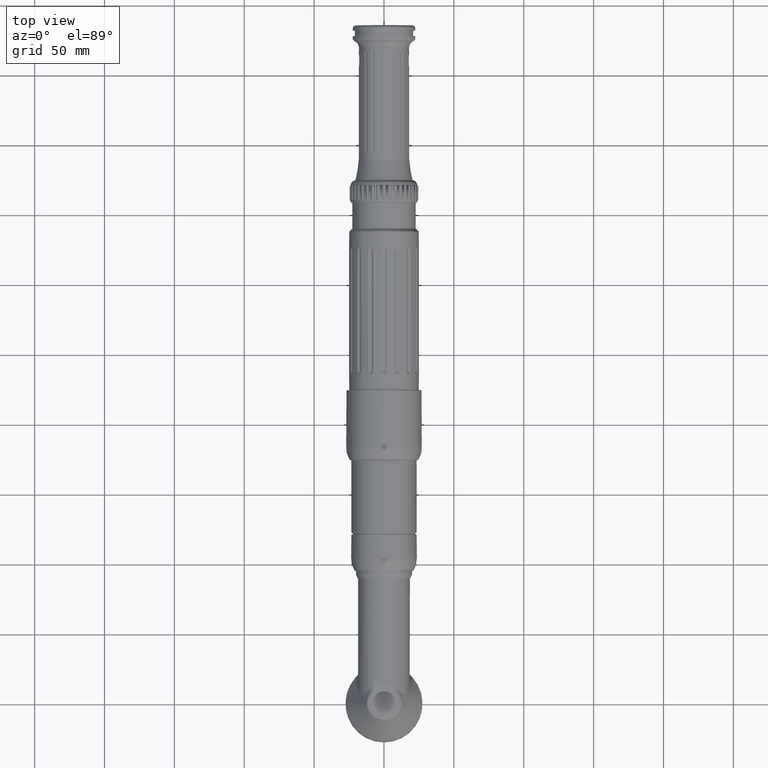
[diagram: clean part render]
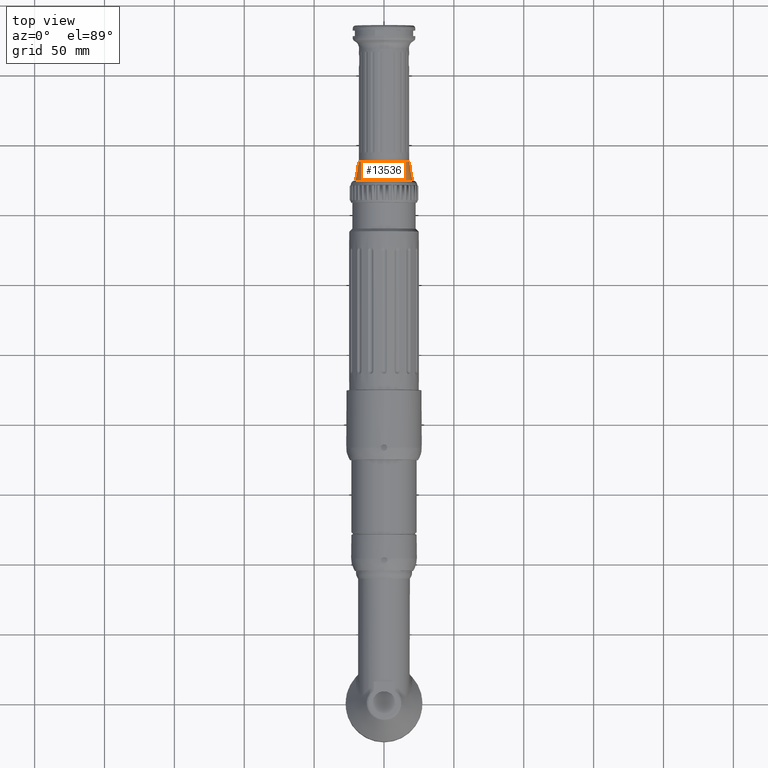
[diagram: same view with one face highlighted and labeled with its STEP entity id]
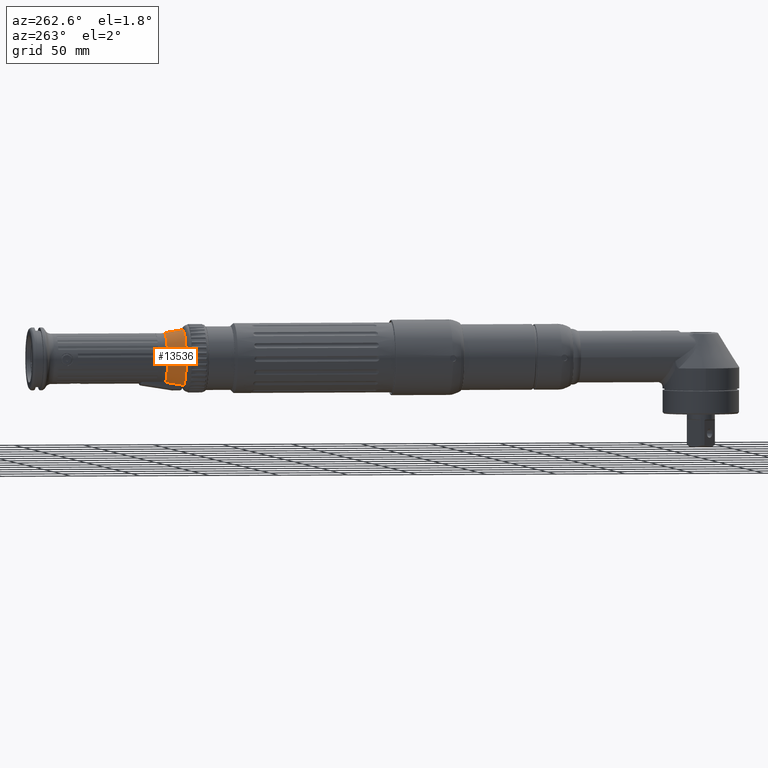
[diagram: same view with one face highlighted and labeled with its STEP entity id]
A machine part, top view. The second image highlights one B-rep face of the part: STEP entity #13536.
A second angle (auxiliary view) of the same face is appended — the face is thin or edge-on in the first view.
In plain terms, the highlighted conical surface has half-angle 9.462 deg.
Its self-contained STEP definition (entity closure, byte-faithful):
#104=(
BOUNDED_CURVE()
B_SPLINE_CURVE(2,(#22838,#22839,#22840),.UNSPECIFIED.,.F.,.F.)
B_SPLINE_CURVE_WITH_KNOTS((3,3),(0.177331248463677,1.22238590458297),
 .UNSPECIFIED.)
CURVE()
GEOMETRIC_REPRESENTATION_ITEM()
RATIONAL_B_SPLINE_CURVE((1.00050185933742,1.0017858943597,1.00077448627961))
REPRESENTATION_ITEM('')
);
#105=(
BOUNDED_CURVE()
B_SPLINE_CURVE(2,(#22843,#22844,#22845),.UNSPECIFIED.,.F.,.F.)
B_SPLINE_CURVE_WITH_KNOTS((3,3),(0.301451099232804,1.34650575535226),
 .UNSPECIFIED.)
CURVE()
GEOMETRIC_REPRESENTATION_ITEM()
RATIONAL_B_SPLINE_CURVE((1.00077448627967,1.00178589435986,1.00050185933746))
REPRESENTATION_ITEM('')
);
#3114=FACE_OUTER_BOUND('',#4074,.T.);
#4074=EDGE_LOOP('',(#10515,#10516,#10517,#10518,#10519,#10520));
#4983=CIRCLE('',#14757,20.5);
#5022=CIRCLE('',#14798,5268.20014690258);
#5033=CIRCLE('',#14902,18.2721215233571);
#5034=CIRCLE('',#14903,5268.20014689311);
#6063=VERTEX_POINT('',#22221);
#6064=VERTEX_POINT('',#22223);
#6152=VERTEX_POINT('',#22525);
#6226=VERTEX_POINT('',#22835);
#6227=VERTEX_POINT('',#22836);
#6228=VERTEX_POINT('',#22841);
#7543=EDGE_CURVE('',#6064,#6063,#4983,.T.);
#7632=EDGE_CURVE('',#6152,#6064,#5022,.T.);
#7775=EDGE_CURVE('',#6226,#6227,#5033,.T.);
#7776=EDGE_CURVE('',#6226,#6152,#104,.T.);
#7777=EDGE_CURVE('',#6063,#6228,#5034,.T.);
#7778=EDGE_CURVE('',#6228,#6227,#105,.T.);
#10515=ORIENTED_EDGE('',*,*,#7775,.F.);
#10516=ORIENTED_EDGE('',*,*,#7776,.T.);
#10517=ORIENTED_EDGE('',*,*,#7632,.T.);
#10518=ORIENTED_EDGE('',*,*,#7543,.T.);
#10519=ORIENTED_EDGE('',*,*,#7777,.T.);
#10520=ORIENTED_EDGE('',*,*,#7778,.T.);
#12245=CONICAL_SURFACE('',#14901,19.25,9.46232220802565);
#13536=ADVANCED_FACE('',(#3114),#12245,.T.);
#14757=AXIS2_PLACEMENT_3D('',#22224,#17562,#17563);
#14798=AXIS2_PLACEMENT_3D('',#22526,#17686,#17687);
#14901=AXIS2_PLACEMENT_3D('',#22834,#18024,#18025);
#14902=AXIS2_PLACEMENT_3D('',#22837,#18026,#18027);
#14903=AXIS2_PLACEMENT_3D('',#22842,#18028,#18029);
#17562=DIRECTION('center_axis',(2.13354998657263E-15,1.,4.58939882007526E-15));
#17563=DIRECTION('ref_axis',(-1.,2.13354998657267E-15,-1.02140518265515E-14));
#17686=DIRECTION('center_axis',(-1.,-7.99860893122631E-13,4.50287575685217E-12));
#17687=DIRECTION('ref_axis',(-4.57336470447201E-12,0.174596569279944,-0.984640055043301));
#18024=DIRECTION('center_axis',(-2.13354998657263E-15,-1.,-4.58939882007526E-15));
#18025=DIRECTION('ref_axis',(-1.02140518265515E-14,-4.58939882007523E-15,
1.));
#18026=DIRECTION('center_axis',(2.13354998657263E-15,1.,4.58939882007526E-15));
#18027=DIRECTION('ref_axis',(-1.03059003364875E-14,-4.58939882007523E-15,
1.));
#18028=DIRECTION('center_axis',(1.,-3.97259667391396E-13,2.23441800815396E-12));
#18029=DIRECTION('ref_axis',(2.26945790063586E-12,0.175194385176757,-0.984533863004487));
#22221=CARTESIAN_POINT('',(7.00000000000075,373.749999999998,-19.2678488679972));
#22223=CARTESIAN_POINT('',(-6.99999999999925,373.749999999998,-19.2678488679974));
#22224=CARTESIAN_POINT('Origin',(5.57329817206954E-13,373.749999999998,
3.92905861651513E-13));
#22525=CARTESIAN_POINT('',(-6.99999999999968,376.899413788058,-18.7084079548215));
#22526=CARTESIAN_POINT('Origin',(-6.99999997590584,-546.059671929289,5168.01303375728));
#22834=CARTESIAN_POINT('Origin',(5.73331442106249E-13,381.249999999998,
4.27326352802078E-13));
#22835=CARTESIAN_POINT('',(-6.99999999999924,387.117270859855,-16.8781048984866));
#22836=CARTESIAN_POINT('',(7.00000000000076,387.117270859855,-16.8781048984865));
#22837=CARTESIAN_POINT('Origin',(5.81933601121503E-13,387.117270859855,
4.54253598763368E-13));
#22838=CARTESIAN_POINT('Ctrl Pts',(-6.99999999999924,387.117270859855,-16.8781048984866));
#22839=CARTESIAN_POINT('Ctrl Pts',(-6.99999999999925,382.271107252714,-17.7525088563988));
#22840=CARTESIAN_POINT('Ctrl Pts',(-6.99999999999925,376.899413788058,-18.7084079548217));
#22841=CARTESIAN_POINT('',(7.00000000000032,376.899413788058,-18.7084079548217));
#22842=CARTESIAN_POINT('Origin',(6.9999999880448,-546.059671934982,5168.01303374666));
#22843=CARTESIAN_POINT('Ctrl Pts',(7.00000000000076,376.899413788057,-18.7084079548216));
#22844=CARTESIAN_POINT('Ctrl Pts',(7.00000000000076,382.271107252717,-17.7525088563981));
#22845=CARTESIAN_POINT('Ctrl Pts',(7.00000000000076,387.117270859855,-16.8781048984865));